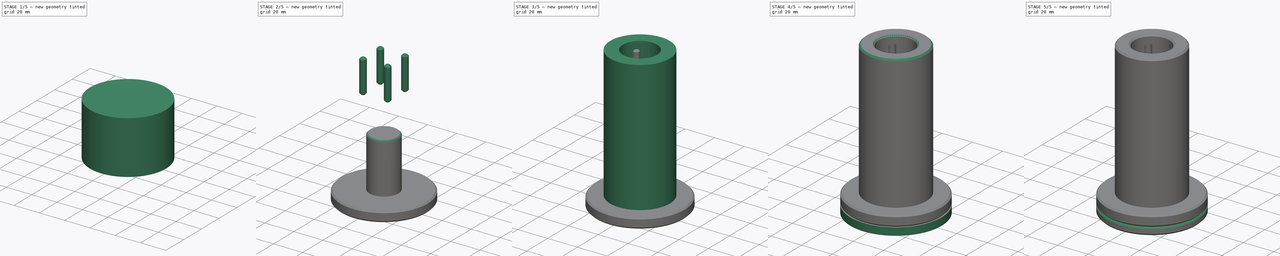
[diagram: build sequence overview — one tinted view per stage of 5, left to right]
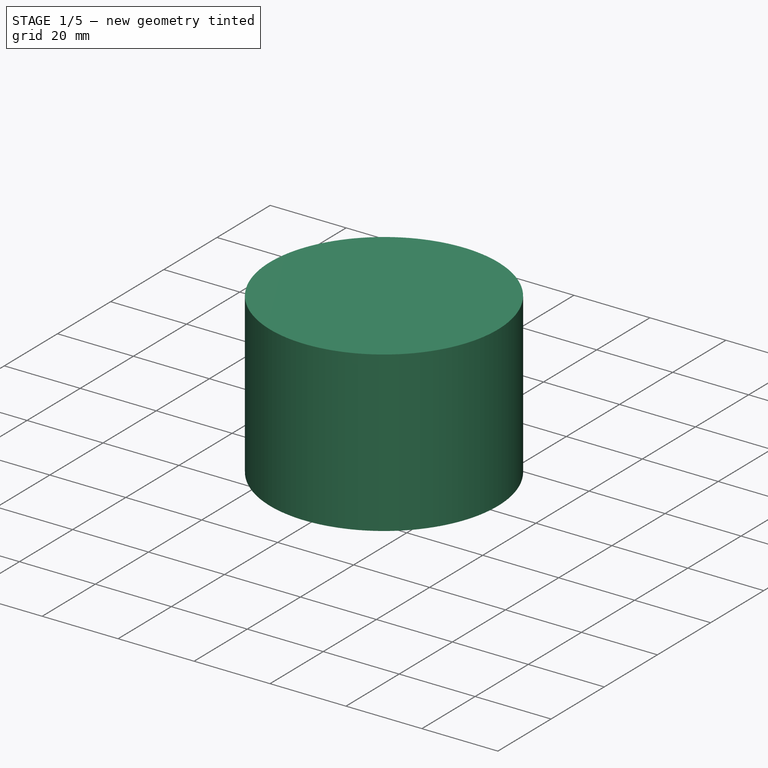
[diagram: stage 1 of 5 — iso view after this stage's code; geometry added in this stage tinted green]
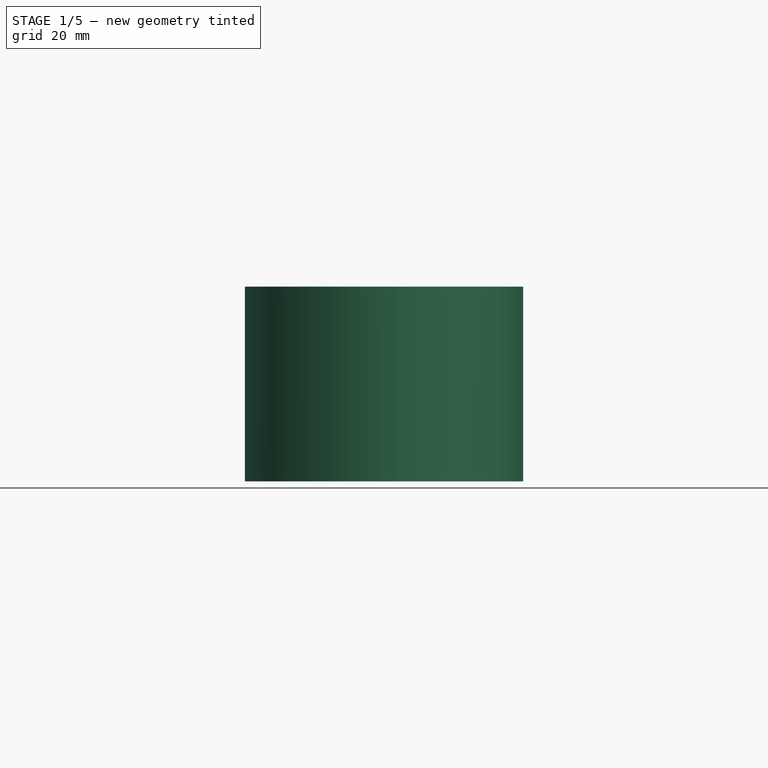
[diagram: stage 1 of 5 — front view after this stage's code; geometry added in this stage tinted green]
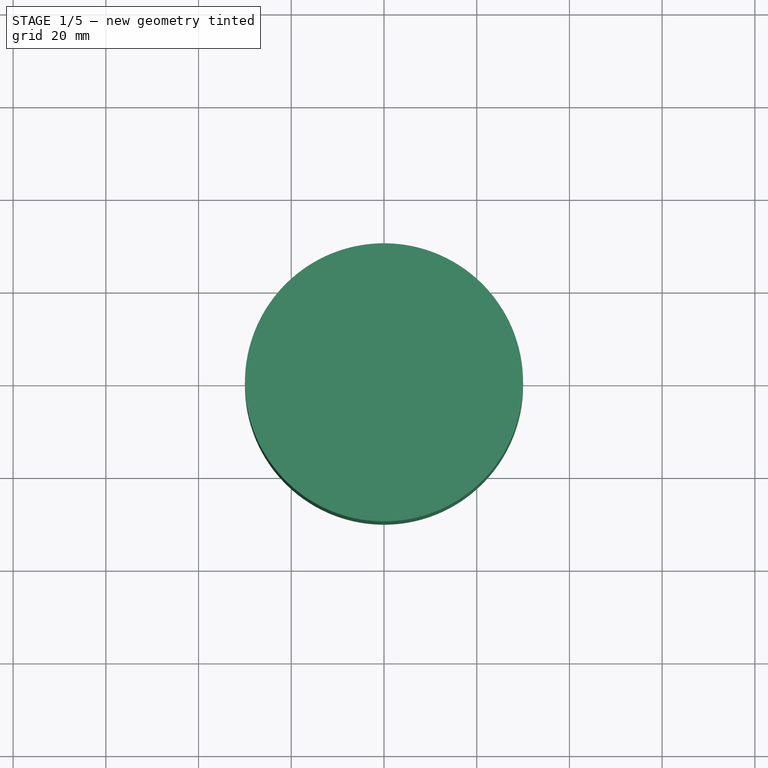
[diagram: stage 1 of 5 — top view after this stage's code; geometry added in this stage tinted green]
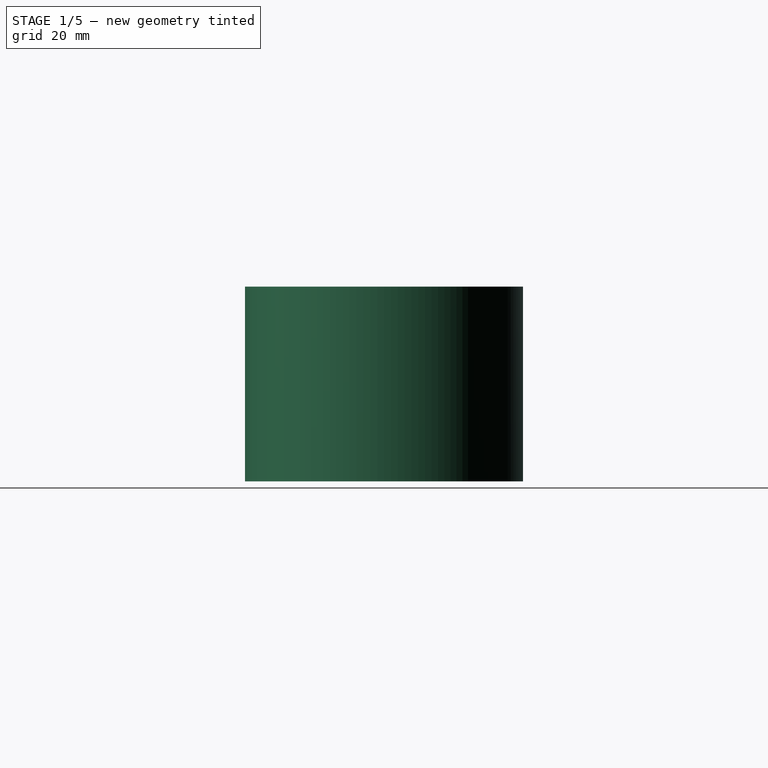
[diagram: stage 1 of 5 — right view after this stage's code; geometry added in this stage tinted green]
FCSTD DOCUMENT  (FreeCAD 0.18R16146 (Git))
Label: filament-box
License: Other
LicenseURL: GPL3
objects: Part::Feature×8, Sketcher::SketchObject×6, Part::Cylinder×6, Part::Chamfer×5, PartDesign::Pad×3, PartDesign::Pocket×3, Part::Cut×3, PartDesign::Chamfer×2, PartDesign::Body×2, Part::MultiFuse×2, Part::MultiCommon×2, Part::Fillet×1
note: 49 computed .brp shape members not serialized (recipe doc carries the construction recipe); baked Part::Feature solids carry a one-line shape summary decoded from their .brp

FEATURE [Part::Feature] Chamfer003004004  label="Chamfer003008"
  shape: bbox 60 x 60 x 77 mm, 16 faces (baked)
FEATURE [Part::Cylinder] Cylinder007
  Angle = 360
  AttacherType = Attacher::AttachEngine3D
  Height = 42
  Radius = 30
FEATURE [Part::Cylinder] Cylinder008
  Angle = 360
  AttacherType = Attacher::AttachEngine3D
  Height = 37
  Radius = 30
FEATURE [Part::MultiCommon] Common001
  Shapes = -> [Cylinder008,Chamfer003004004]
FEATURE [Part::Chamfer] Chamfer003004007
  Base = -> Common001
  Edges = 1 edges: [Edge22 r1=5 r2=3]
FEATURE [Part::Fillet] Fillet  label="37mm-axis"
  Base = -> Chamfer003004007
  Edges = 2 edges r=1: [Edge2,Edge5]
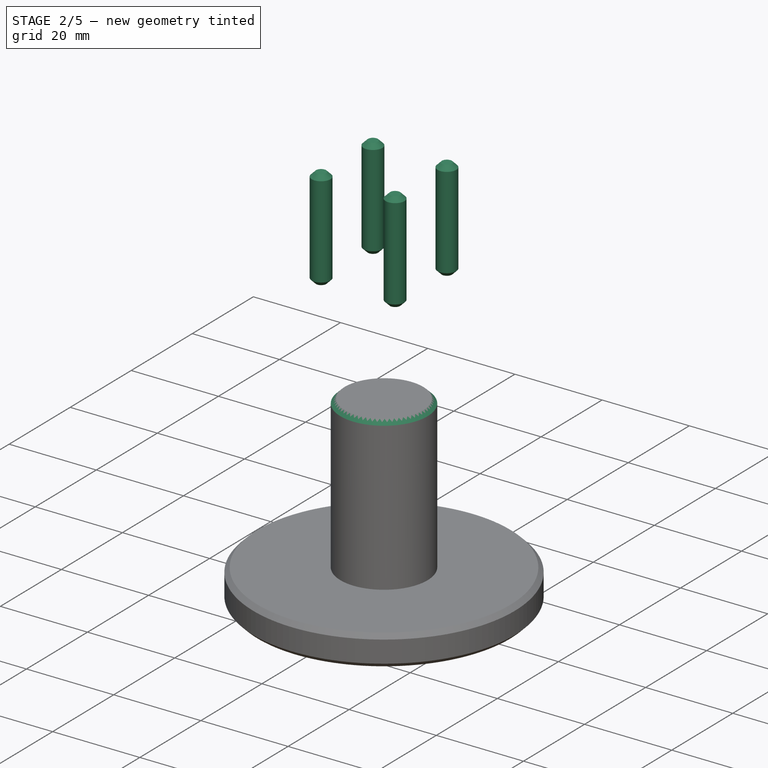
[diagram: stage 2 of 5 — iso view after this stage's code; geometry added in this stage tinted green]
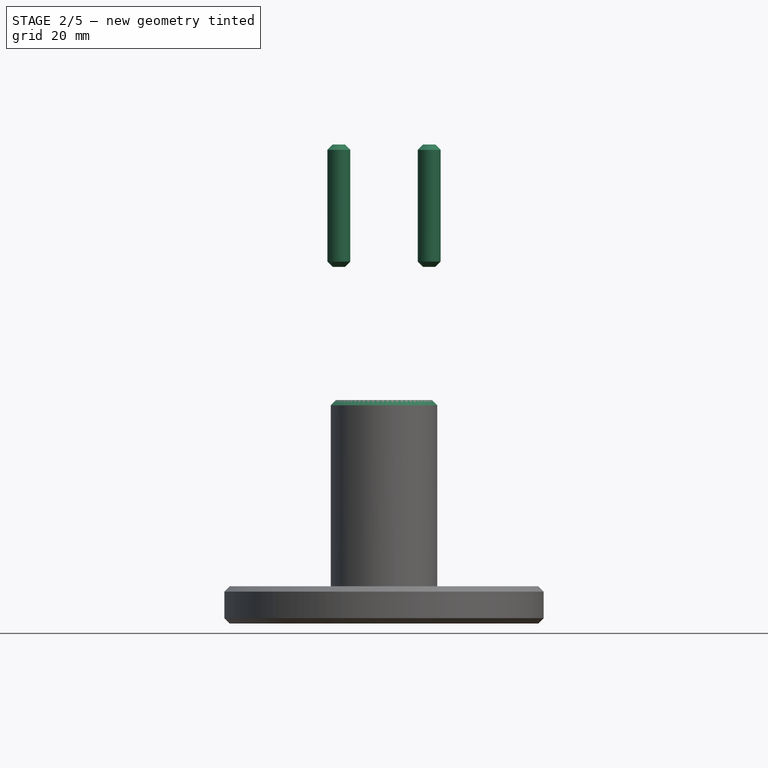
[diagram: stage 2 of 5 — front view after this stage's code; geometry added in this stage tinted green]
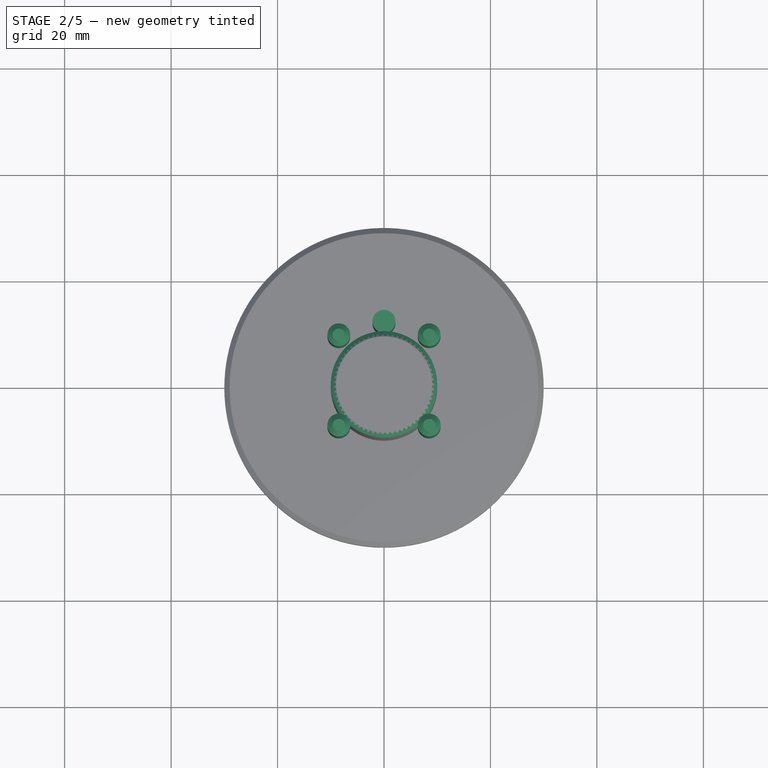
[diagram: stage 2 of 5 — top view after this stage's code; geometry added in this stage tinted green]
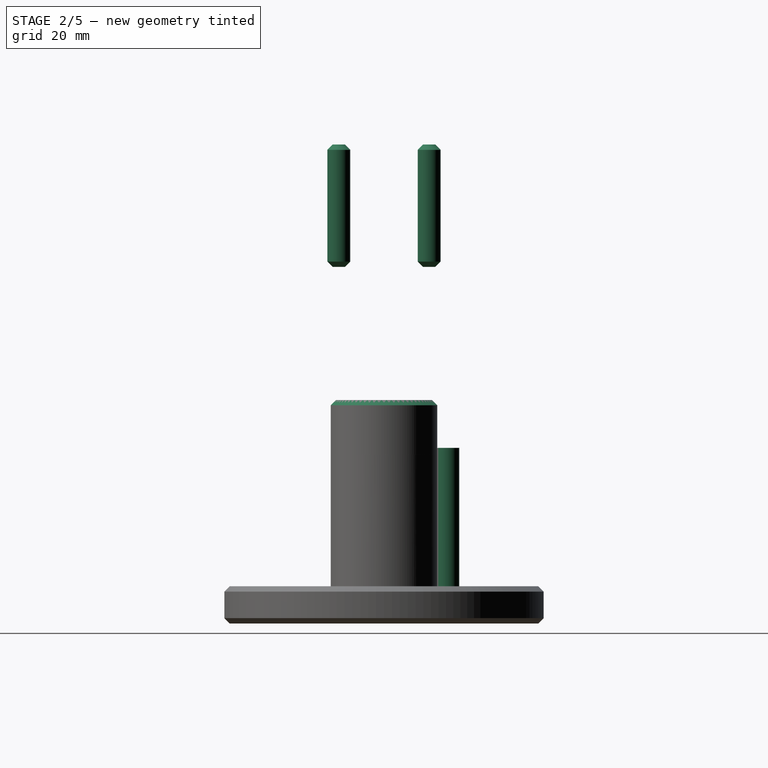
[diagram: stage 2 of 5 — right view after this stage's code; geometry added in this stage tinted green]
FEATURE [PartDesign::Body] Body001  label="side-plate"
  Group = -> [Sketch003,Pad002,Sketch004,Pocket001,Sketch005,Pocket002,Chamfer001]
  Origin = -> Origin001
  Placement = pos=(0,0,-79) rot=(0,0,1;0rad)
  Tip = -> Chamfer001
FEATURE [Part::Cylinder] Cylinder
  Angle = 360
  AttacherType = Attacher::AttachEngine3D
  Height = 33
  Placement = pos=(0,12,0) rot=(0,0,1;0rad)
  Radius = 2.15
FEATURE [Part::Cylinder] Cylinder006
  Angle = 360
  AttacherType = Attacher::AttachEngine3D
  Height = 23
  Placement = pos=(0,12,0) rot=(0,0,1;0rad)
  Radius = 2.15
FEATURE [Part::Chamfer] Chamfer003004
  Base = -> Cylinder006
  Edges = 2 edges r=1: [Edge1,Edge3]
FEATURE [Part::Feature] Chamfer003004001  label="Chamfer003005"
  Placement = pos=(0,0,0) rot=(0,0,1;4.71239rad)
  shape: bbox 4.3 x 4.3 x 23 mm, 5 faces (baked)
FEATURE [Part::Feature] Chamfer003004002  label="Chamfer003006"
  Placement = pos=(0,0,0) rot=(0,0,1;3.14159rad)
  shape: bbox 4.3 x 4.3 x 23 mm, 5 faces (baked)
FEATURE [Part::Feature] Chamfer003004003  label="Chamfer003007"
  Placement = pos=(0,0,0) rot=(0,0,-1;4.71239rad)
  shape: bbox 4.3 x 4.3 x 23 mm, 5 faces (baked)
FEATURE [Part::MultiFuse] Fusion001
  Placement = pos=(0,0,67) rot=(0,0,1;5.49779rad)
  Shapes = -> [Chamfer003004003,Chamfer003004002,Chamfer003004001,Chamfer003004]
FEATURE [Part::Feature] Chamfer003004005  label="Chamfer003009"
  shape: bbox 60 x 60 x 77 mm, 16 faces (baked)
FEATURE [Part::MultiCommon] Common
  Shapes = -> [Cylinder007,Chamfer003004005]
FEATURE [Part::Chamfer] Chamfer003004006  label="35mm-axis"
  Base = -> Common
  Edges = 1 edges r=1: [Edge22]
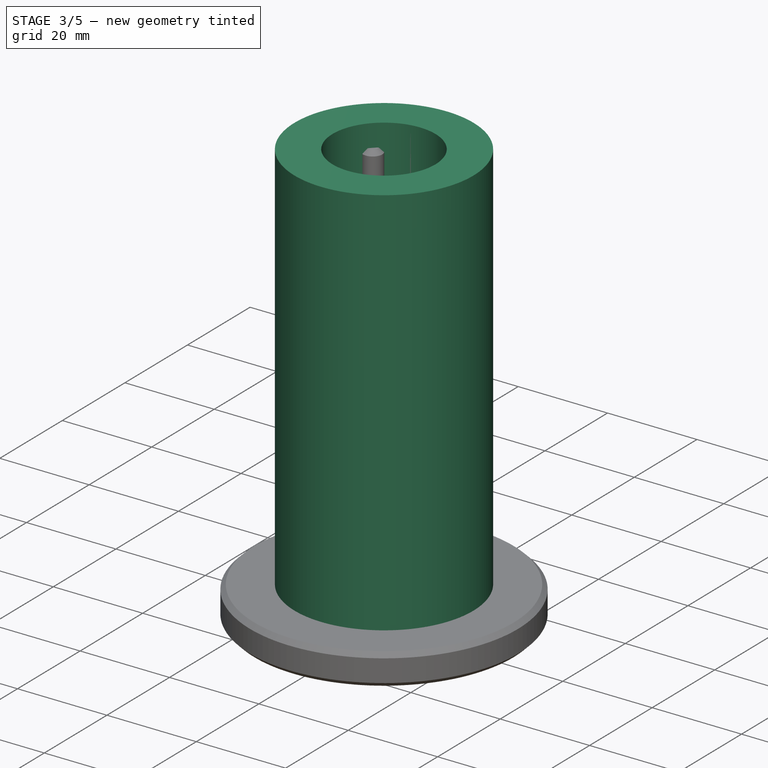
[diagram: stage 3 of 5 — iso view after this stage's code; geometry added in this stage tinted green]
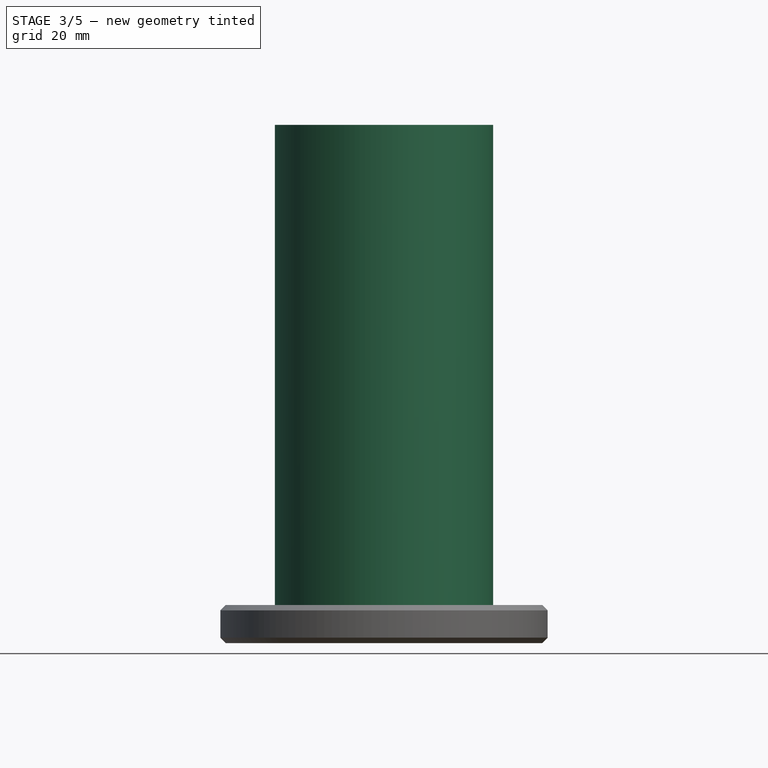
[diagram: stage 3 of 5 — front view after this stage's code; geometry added in this stage tinted green]
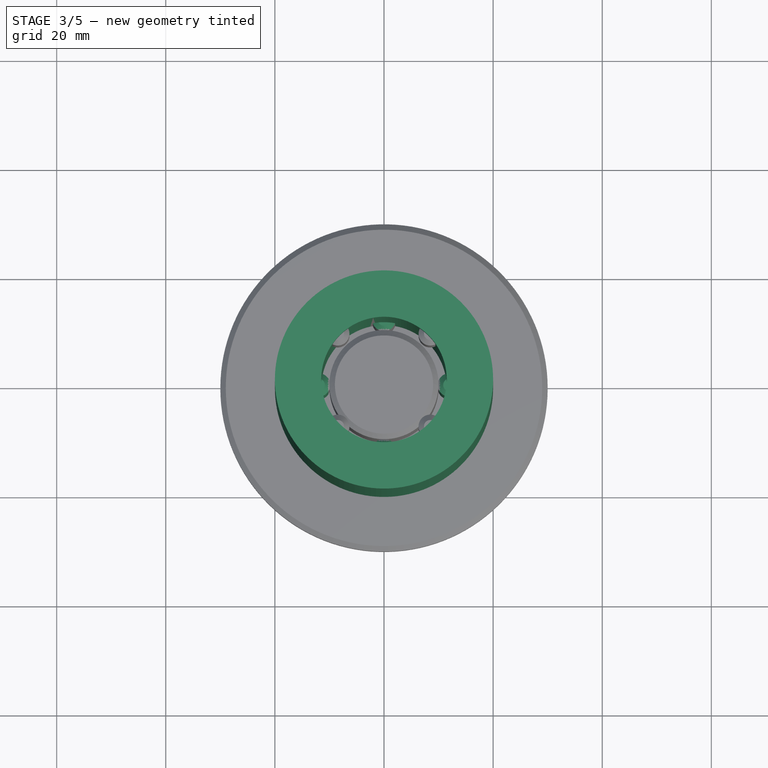
[diagram: stage 3 of 5 — top view after this stage's code; geometry added in this stage tinted green]
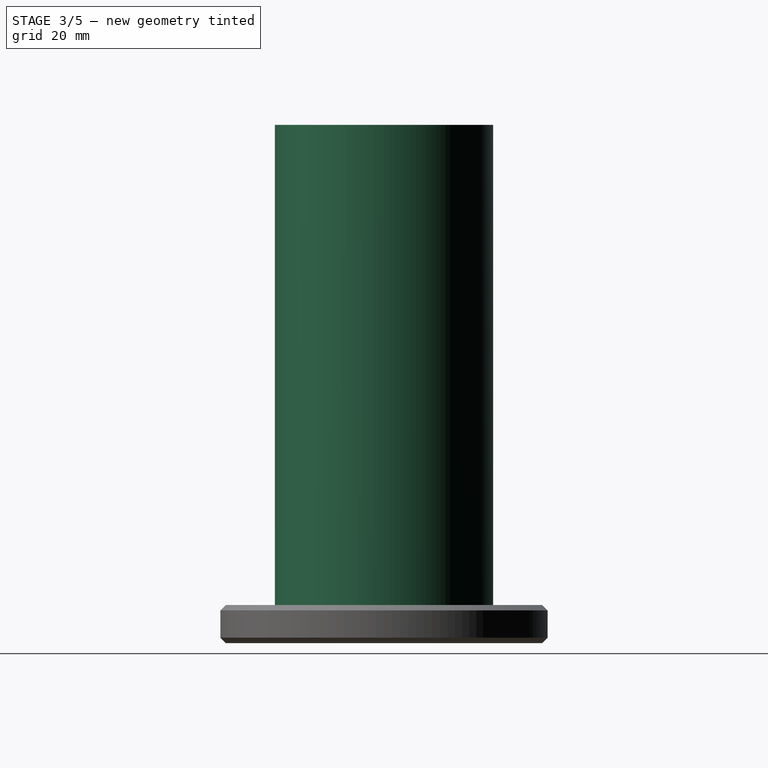
[diagram: stage 3 of 5 — right view after this stage's code; geometry added in this stage tinted green]
FEATURE [Part::Cylinder] Cylinder004
  Angle = 360
  AttacherType = Attacher::AttachEngine3D
  Height = 95
  Radius = 11.5
FEATURE [Part::Cylinder] Cylinder005
  Angle = 360
  AttacherType = Attacher::AttachEngine3D
  Height = 95
  Radius = 20
FEATURE [Part::Cut] Cut
  Base = -> Cylinder005
  Tool = -> Cylinder004
FEATURE [Part::Chamfer] Chamfer003
  Base = -> Cylinder
  Edges = 2 edges r=1: [Edge1,Edge3]
FEATURE [Part::Feature] Chamfer003001  label="Chamfer004"
  Placement = pos=(0,0,0) rot=(0,0,1;4.71239rad)
  shape: bbox 4.3 x 4.3 x 33 mm, 5 faces (baked)
FEATURE [Part::Feature] Chamfer003002  label="Chamfer005"
  Placement = pos=(0,0,0) rot=(0,0,1;3.14159rad)
  shape: bbox 4.3 x 4.3 x 33 mm, 5 faces (baked)
FEATURE [Part::Feature] Chamfer003003  label="Chamfer006"
  Placement = pos=(0,0,0) rot=(0,0,-1;4.71239rad)
  shape: bbox 4.3 x 4.3 x 33 mm, 5 faces (baked)
FEATURE [Part::MultiFuse] Fusion
  Placement = pos=(0,0,5) rot=(0,0,1;0rad)
  Shapes = -> [Chamfer003003,Chamfer003002,Chamfer003001,Chamfer003]
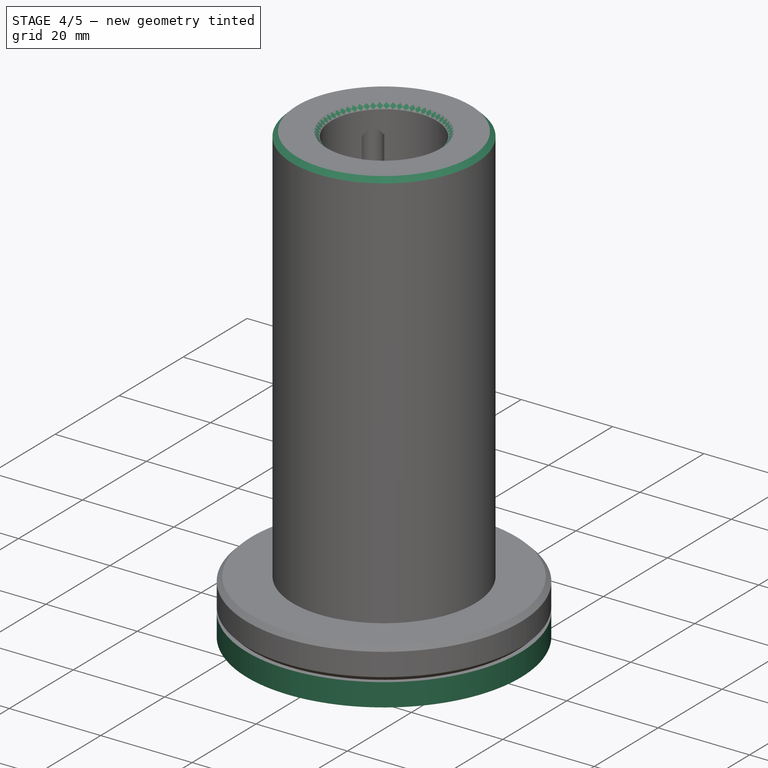
[diagram: stage 4 of 5 — iso view after this stage's code; geometry added in this stage tinted green]
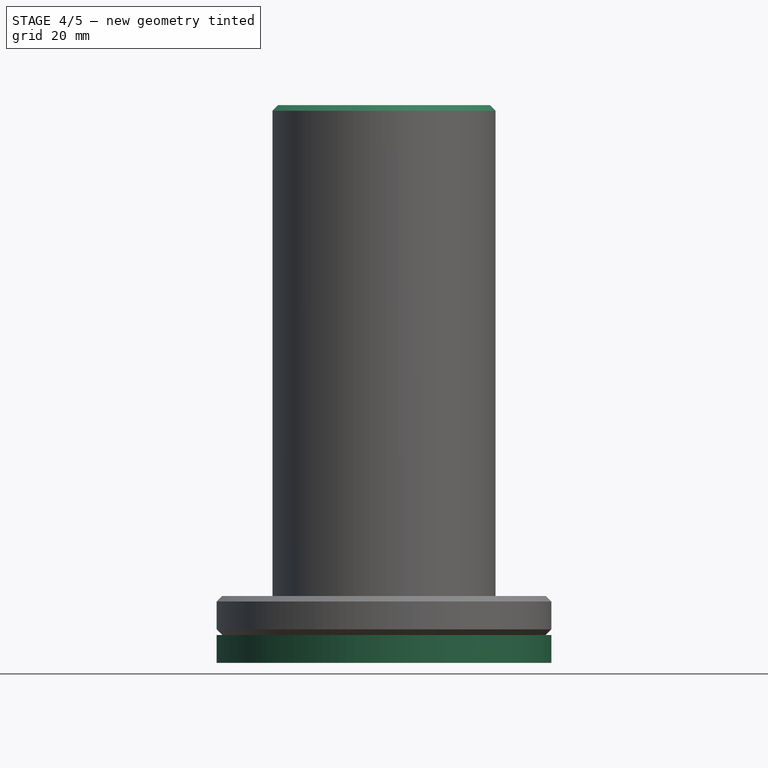
[diagram: stage 4 of 5 — front view after this stage's code; geometry added in this stage tinted green]
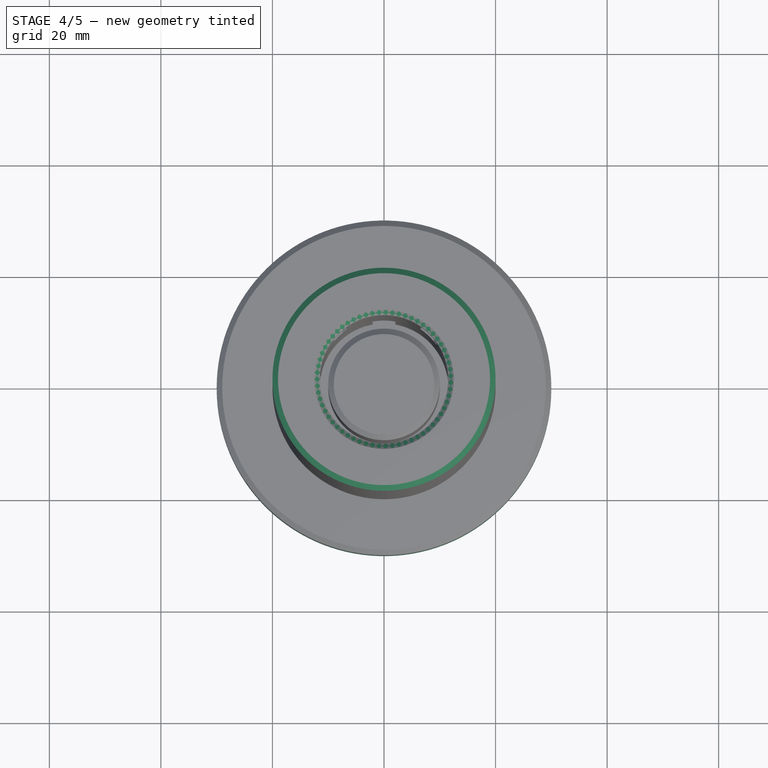
[diagram: stage 4 of 5 — top view after this stage's code; geometry added in this stage tinted green]
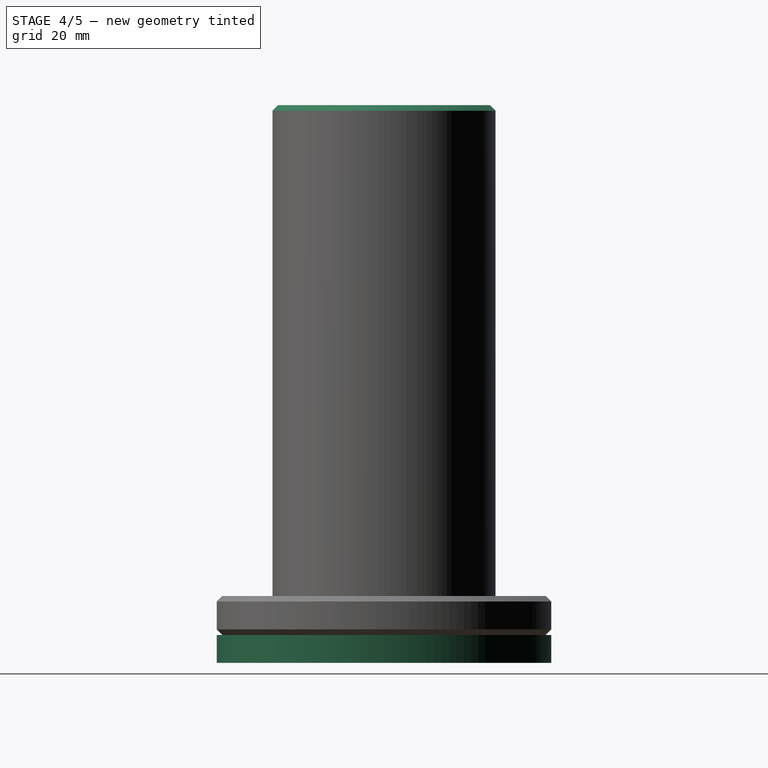
[diagram: stage 4 of 5 — right view after this stage's code; geometry added in this stage tinted green]
FEATURE [PartDesign::Body] Body  label="long-axis"
  Group = -> [Sketch,Pad,Sketch001,Pad001,Sketch002,Pocket,Chamfer]
  Origin = -> Origin
  Placement = pos=(0,0,-78) rot=(0,0,1;0rad)
  Tip = -> Chamfer
FEATURE [Sketcher::SketchObject] Sketch003
  MapMode = 5
  Support = -> [XY_Plane001]
  sketch-geometry (1):
    g0: Circle CenterX=0 CenterY=0 CenterZ=0 NormalX=0 NormalY=0 NormalZ=1 AngleXU=0 Radius=30
  constraints (2):
    c: Coincident(g0,g-1)
    c: Radius(g0) = 30
FEATURE [PartDesign::Pad] Pad002
  Length = 5
  Length2 = 100
  Profile = -> Sketch003
  Reversed = true
  Type = 0
FEATURE [Sketcher::SketchObject] Sketch004
  MapMode = 5
  Placement = pos=(0,0,-5) rot=(1,0,0;3.14159rad)
  Support = -> [Pad002]
  sketch-geometry (4):
    g0: Circle CenterX=0 CenterY=22 CenterZ=0 NormalX=0 NormalY=0 NormalZ=1 AngleXU=0 Radius=1.65
    g1: Circle CenterX=-22 CenterY=0 CenterZ=0 NormalX=0 NormalY=0 NormalZ=1 AngleXU=0 Radius=1.65
    g2: Circle CenterX=22 CenterY=0 CenterZ=0 NormalX=0 NormalY=0 NormalZ=1 AngleXU=0 Radius=1.65
    g3: Circle CenterX=0 CenterY=-22 CenterZ=0 NormalX=0 NormalY=0 NormalZ=1 AngleXU=0 Radius=1.65
  constraints (12):
    c: Radius(g0) = 1.65
    c: Radius(g2) = 1.65
    c: Radius(g1) = 1.65
    c: Radius(g3) = 1.65
    c: DistanceX(g1,g-1) = 22
    c: DistanceX(g-1,g2) = 22
    c: DistanceX(g0,g-1) = 0
    c: DistanceX(g3,g-1) = 0
    c: DistanceY(g-1,g0) = 22
    c: DistanceY(g3,g-1) = 22
    c: DistanceY(g-1,g1) = 0
    c: DistanceY(g-1,g2) = 0
FEATURE [PartDesign::Pocket] Pocket001
  BaseFeature = -> Pad002
  Length = 6
  Length2 = 100
  Profile = -> Sketch004
  Type = 0
FEATURE [Sketcher::SketchObject] Sketch005
  MapMode = 5
  Placement = pos=(0,0,-5) rot=(1,0,0;3.14159rad)
  Support = -> [Pocket001]
  sketch-geometry (4):
    g0: Circle CenterX=0 CenterY=22 CenterZ=0 NormalX=0 NormalY=0 NormalZ=1 AngleXU=0 Radius=3.5
    g1: Circle CenterX=-22 CenterY=0 CenterZ=0 NormalX=0 NormalY=0 NormalZ=1 AngleXU=0 Radius=3.5
    g2: Circle CenterX=22 CenterY=0 CenterZ=0 NormalX=0 NormalY=0 NormalZ=1 AngleXU=0 Radius=3.5
    g3: Circle CenterX=0 CenterY=-22 CenterZ=0 NormalX=0 NormalY=0 NormalZ=1 AngleXU=0 Radius=3.5
  constraints (12):
    c: Radius(g0) = 3.5
    c: Radius(g1) = 3.5
    c: Radius(g3) = 3.5
    c: Radius(g2) = 3.5
    c: DistanceY(g-1,g0) = 22
    c: DistanceY(g3,g-1) = 22
    c: DistanceY(g-1,g1) = 0
    c: DistanceY(g-1,g2) = 0
    c: DistanceX(g0,g-1) = 0
    c: DistanceX(g3,g-1) = 0
    c: DistanceX(g1,g-1) = 22
    c: DistanceX(g-1,g2) = 22
FEATURE [PartDesign::Pocket] Pocket002
  BaseFeature = -> Pocket001
  Length = 2
  Length2 = 100
  Profile = -> Sketch005
  Type = 0
FEATURE [Part::Chamfer] Chamfer002
  Base = -> Cut
  Edges = 4 edges r=1: [Edge1,Edge3,Edge4,Edge5]
FEATURE [Part::Cut] Cut001
  Base = -> Chamfer002
  Tool = -> Fusion
FEATURE [Part::Cut] Cut002  label="roller"
  Base = -> Cut001
  Tool = -> Fusion001
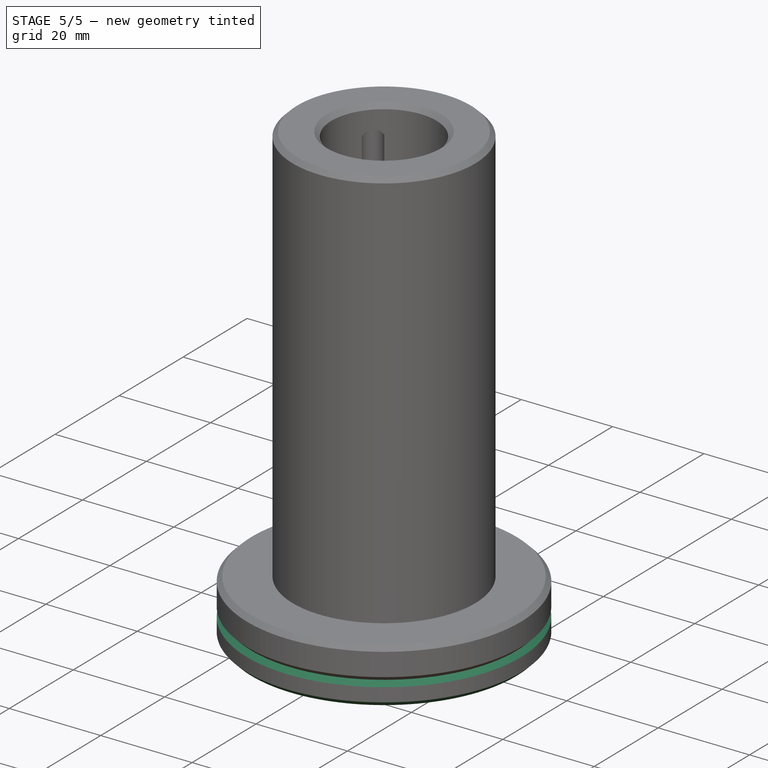
[diagram: stage 5 of 5 — iso view after this stage's code; geometry added in this stage tinted green]
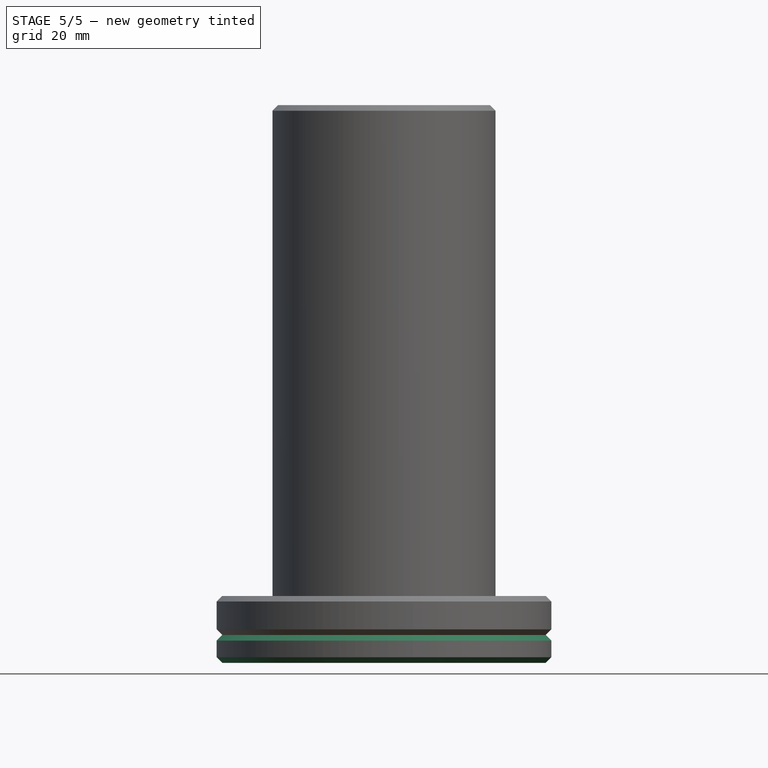
[diagram: stage 5 of 5 — front view after this stage's code; geometry added in this stage tinted green]
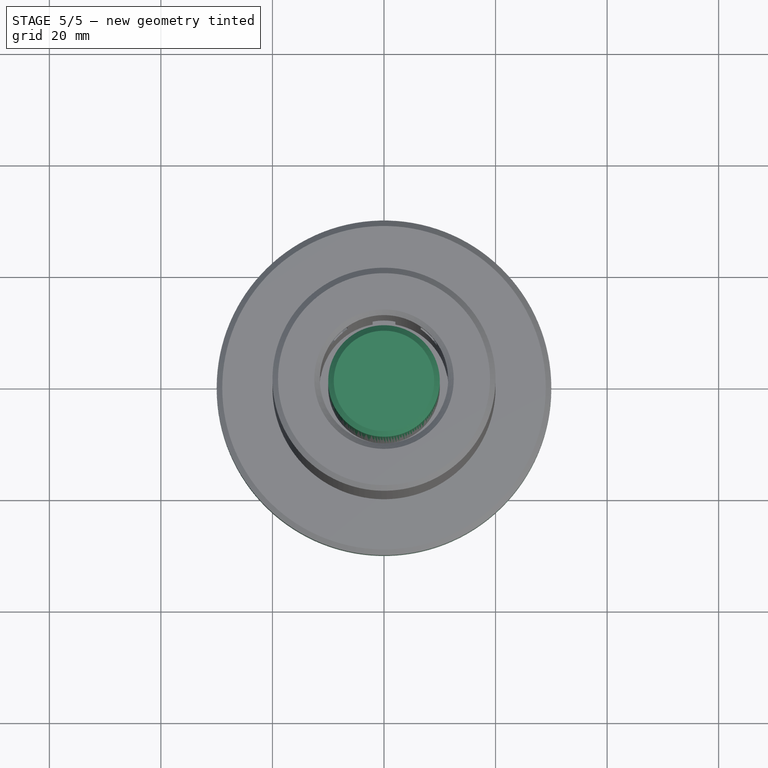
[diagram: stage 5 of 5 — top view after this stage's code; geometry added in this stage tinted green]
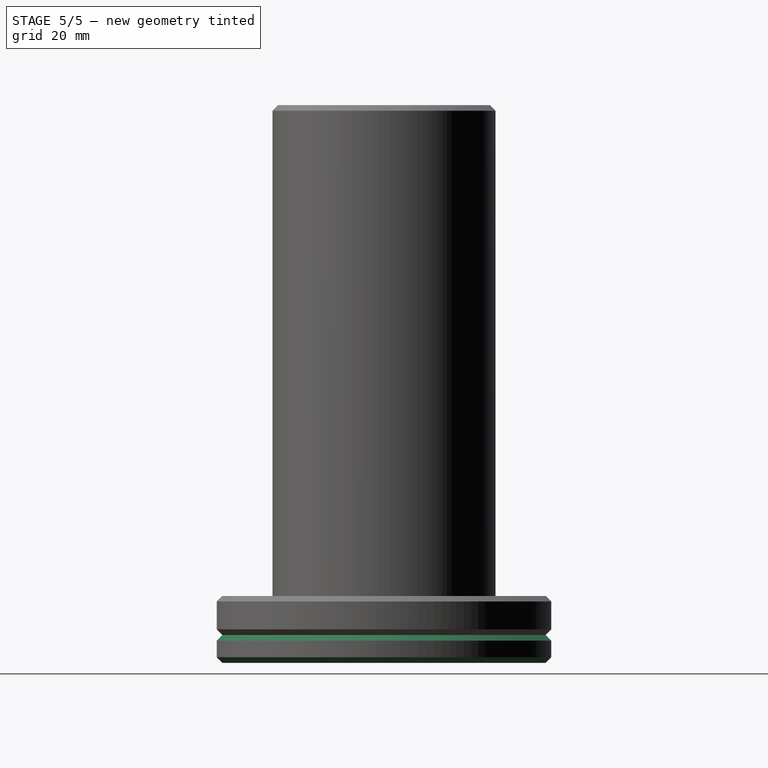
[diagram: stage 5 of 5 — right view after this stage's code; geometry added in this stage tinted green]
FEATURE [Sketcher::SketchObject] Sketch
  MapMode = 5
  Support = -> [XY_Plane]
  sketch-geometry (1):
    g0: Circle CenterX=0 CenterY=0 CenterZ=0 NormalX=0 NormalY=0 NormalZ=1 AngleXU=0 Radius=30
  constraints (2):
    c: Coincident(g0,g-1)
    c: Radius(g0) = 30
FEATURE [PartDesign::Pad] Pad
  Length = 7
  Length2 = 100
  Profile = -> Sketch
  Type = 0
FEATURE [Sketcher::SketchObject] Sketch001
  MapMode = 5
  Placement = pos=(0,0,7) rot=(0,0,1;0rad)
  Support = -> [Pad]
  sketch-geometry (1):
    g0: Circle CenterX=0 CenterY=0 CenterZ=0 NormalX=0 NormalY=0 NormalZ=1 AngleXU=0 Radius=10
  constraints (2):
    c: Coincident(g0,g-1)
    c: Radius(g0) = 10
FEATURE [PartDesign::Pad] Pad001
  BaseFeature = -> Pad
  Length = 70
  Length2 = 100
  Profile = -> Sketch001
  Type = 0
FEATURE [Sketcher::SketchObject] Sketch002
  MapMode = 5
  Placement = pos=(0,0,0) rot=(1,0,0;3.14159rad)
  Support = -> [Pad001]
  sketch-geometry (4):
    g0: Circle CenterX=0 CenterY=22 CenterZ=0 NormalX=0 NormalY=0 NormalZ=1 AngleXU=0 Radius=2.05
    g1: Circle CenterX=22 CenterY=0 CenterZ=0 NormalX=0 NormalY=0 NormalZ=1 AngleXU=0 Radius=2.05
    g2: Circle CenterX=-22 CenterY=0 CenterZ=0 NormalX=0 NormalY=0 NormalZ=1 AngleXU=0 Radius=2.05
    g3: Circle CenterX=0 CenterY=-22 CenterZ=0 NormalX=0 NormalY=0 NormalZ=1 AngleXU=0 Radius=2.05
  constraints (12):
    c: Radius(g0) = 2.05
    c: Radius(g2) = 2.05
    c: Radius(g1) = 2.05
    c: Radius(g3) = 2.05
    c: DistanceY(g-1,g0) = 22
    c: DistanceY(g3,g-1) = 22
    c: DistanceY(g-1,g2) = 0
    c: DistanceY(g-1,g1) = 0
    c: DistanceX(g0,g-1) = 0
    c: DistanceX(g3,g-1) = 0
    c: DistanceX(g-1,g1) = 22
    c: DistanceX(g2,g-1) = 22
FEATURE [PartDesign::Pocket] Pocket
  BaseFeature = -> Pad001
  Length = 6
  Length2 = 100
  Profile = -> Sketch002
  Type = 0
FEATURE [PartDesign::Chamfer] Chamfer
  Base = -> Pocket [Edge2,Edge3,Edge18]
  BaseFeature = -> Pocket
  Size = 1
FEATURE [PartDesign::Chamfer] Chamfer001
  Base = -> Pocket002 [Edge3,Edge2]
  BaseFeature = -> Pocket002
  Size = 1
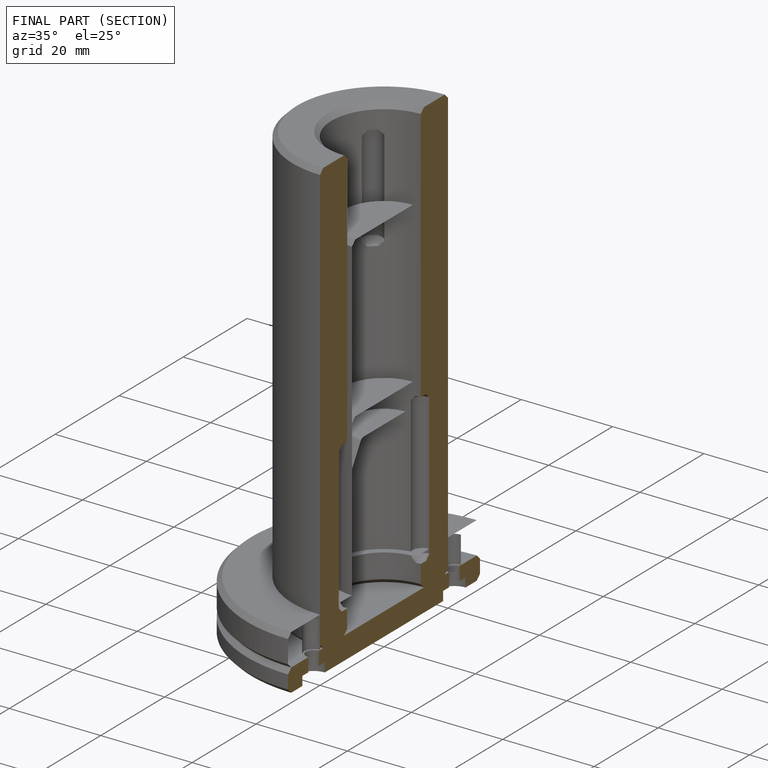
[diagram: finished part — half-section view (interior)]
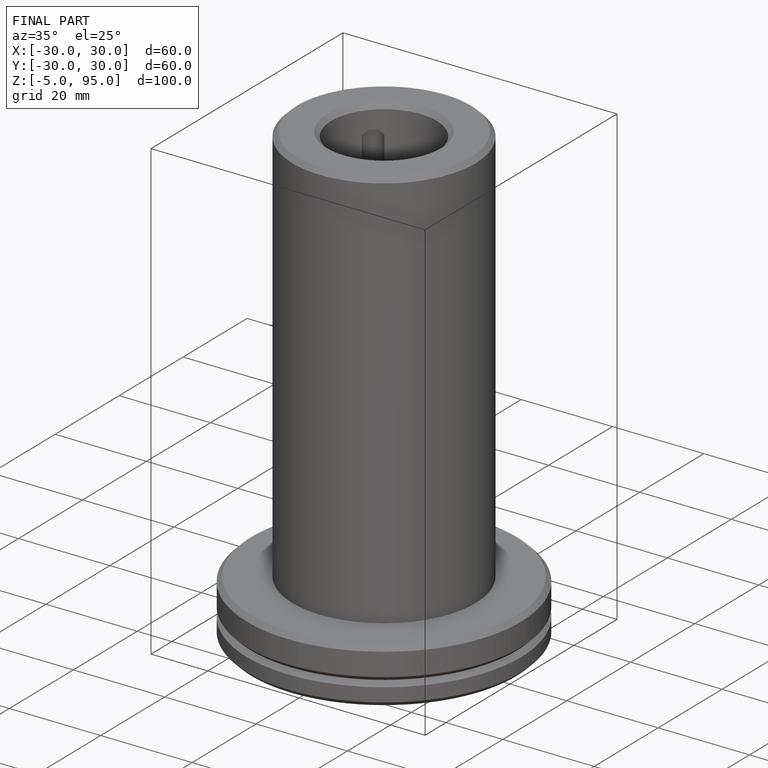
[diagram: finished part — iso view with bounding-box wireframe]
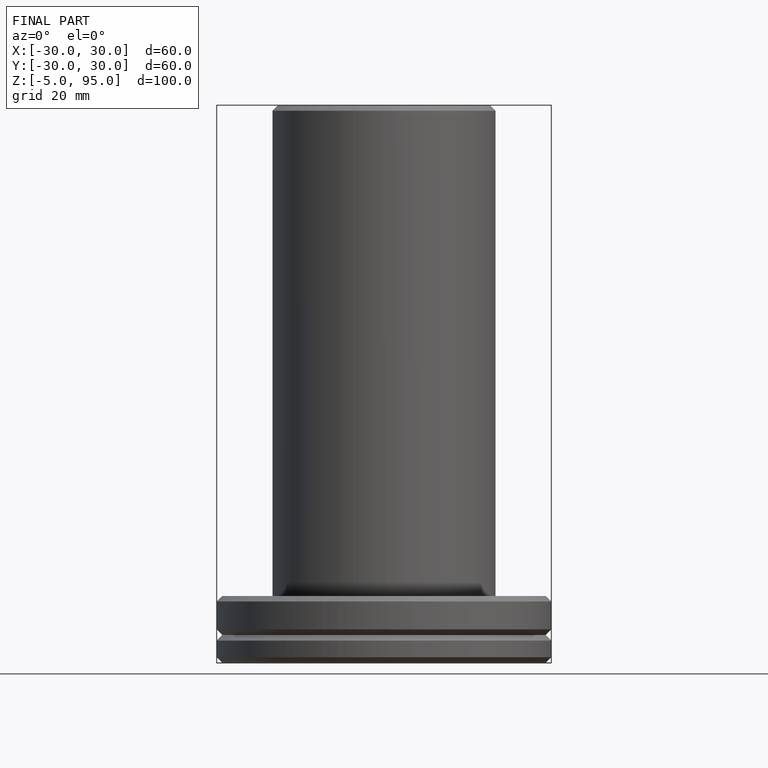
[diagram: finished part — front view with bounding-box wireframe]
